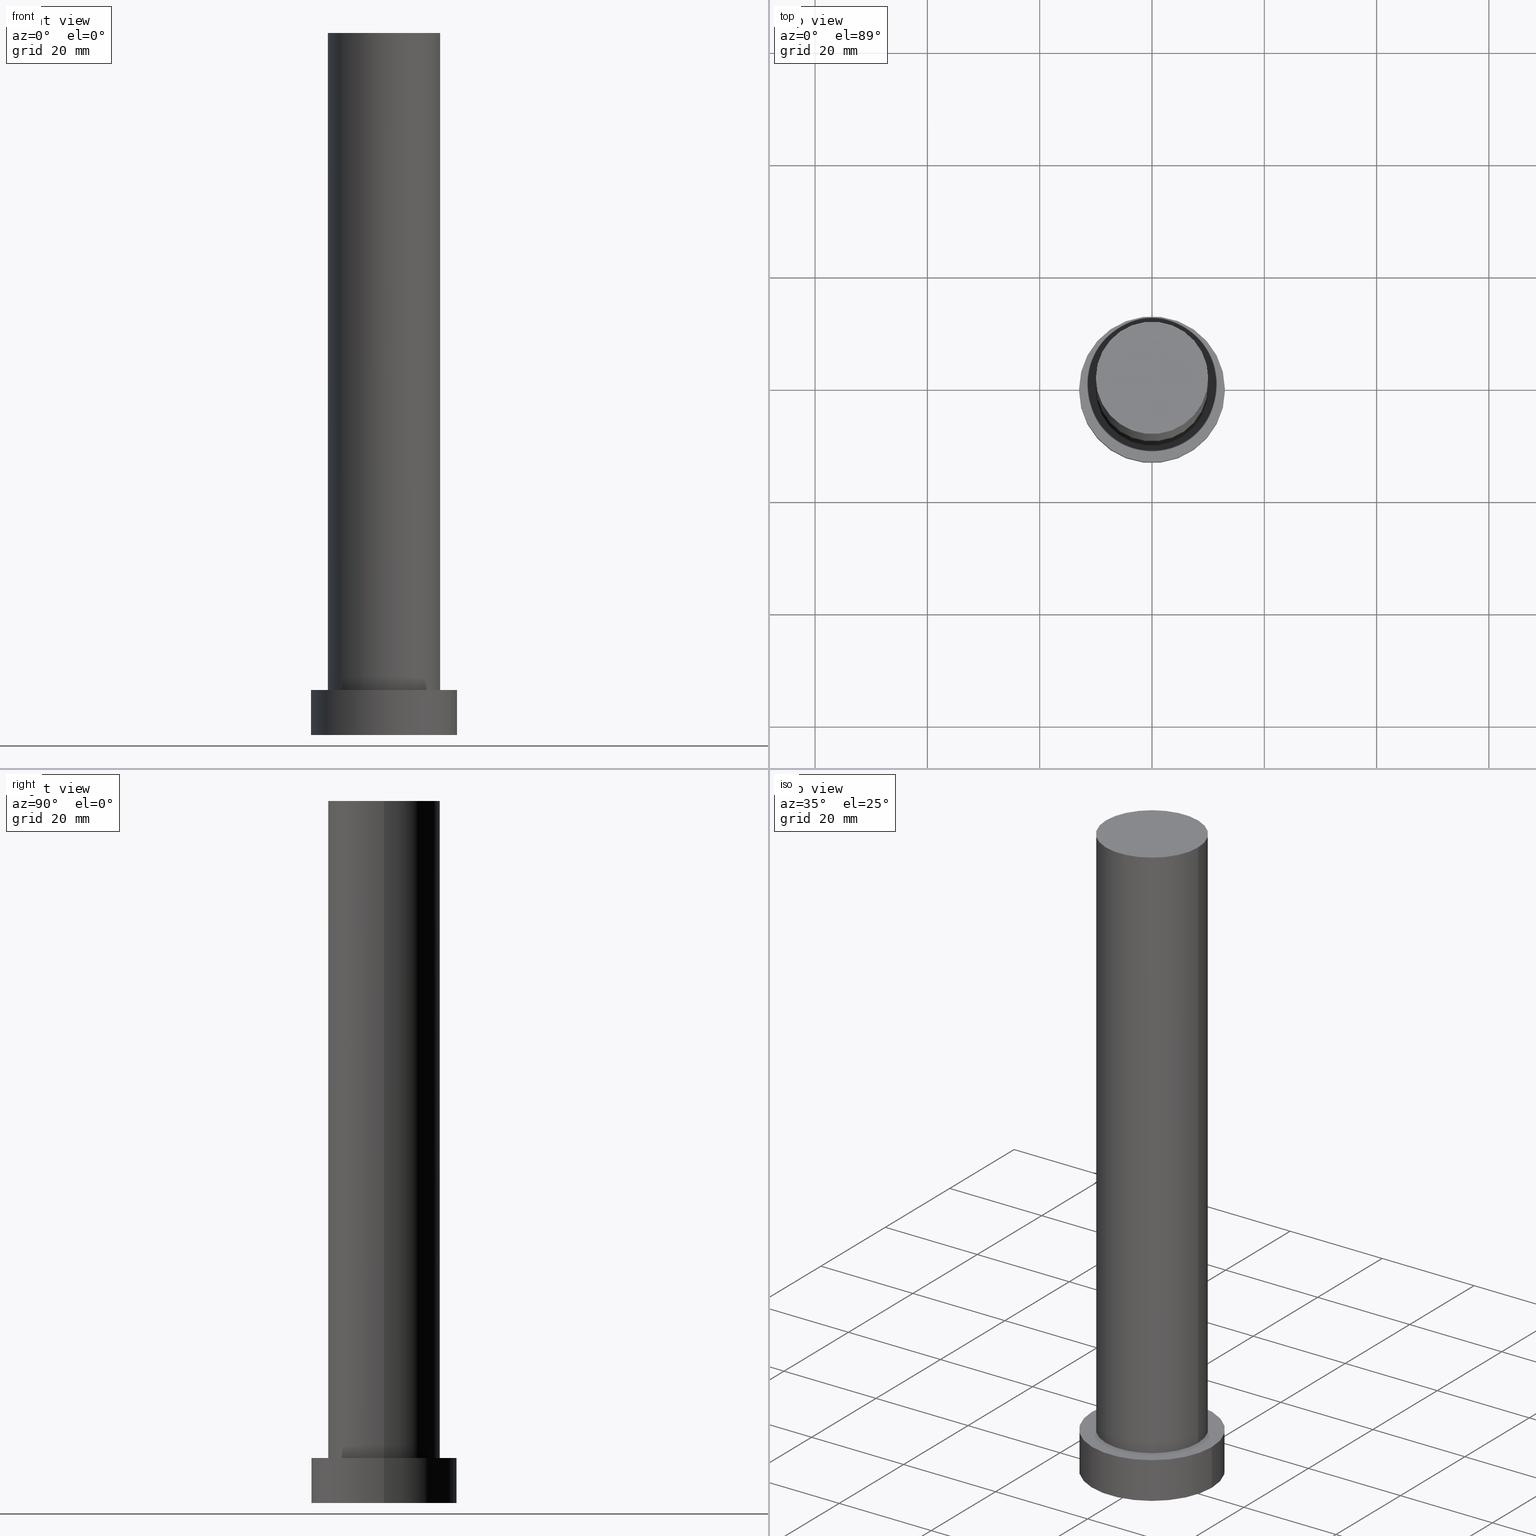
[diagram: canonical four-view strip — front | top / right | iso, engineering-drawing reading convention]
A machine part, canonical four-view strip (front | top / right | iso — engineering-drawing reading convention). The complete STEP part file that produces these views, byte-faithful:
ISO-10303-21;
HEADER;
FILE_DESCRIPTION (( 'STEP AP203' ),
    '1' );
FILE_NAME ('196e.STEP',
    '2023-02-12T10:33:22',
    ( '' ),
    ( '' ),
    'SwSTEP 2.0',
    'SolidWorks 2019',
    '' );
FILE_SCHEMA (( 'CONFIG_CONTROL_DESIGN' ));
ENDSEC;

DATA;
#1 = CALENDAR_DATE ( 2023, 12, 2 ) ;
#2 = EDGE_LOOP ( 'NONE', ( #15, #207, #255, #253 ) ) ;
#3 = PERSON_AND_ORGANIZATION ( #166, #107 ) ;
#4 = CALENDAR_DATE ( 2023, 12, 2 ) ;
#5 = PERSON_AND_ORGANIZATION_ROLE ( 'creator' ) ;
#6 = EDGE_CURVE ( 'NONE', #169, #216, #144, .T. ) ;
#7 = CARTESIAN_POINT ( 'NONE',  ( 10.00000000000000000, 1.224646799147353256E-15, 8.000000000000000000 ) ) ;
#8 = AXIS2_PLACEMENT_3D ( 'NONE', #252, #153, #132 ) ;
#9 = CC_DESIGN_SECURITY_CLASSIFICATION ( #40, ( #158 ) ) ;
#10 = CARTESIAN_POINT ( 'NONE',  ( -10.00000000000000000, 0.000000000000000000, 125.0000000000000000 ) ) ;
#11 = SECURITY_CLASSIFICATION_LEVEL ( 'unclassified' ) ;
#12 = ADVANCED_FACE ( 'NONE', ( #186 ), #232, .T. ) ;
#13 = CARTESIAN_POINT ( 'NONE',  ( 0.000000000000000000, 0.000000000000000000, 125.0000000000000000 ) ) ;
#14 = DIRECTION ( 'NONE',  ( -0.000000000000000000, -0.000000000000000000, -1.000000000000000000 ) ) ;
#15 = ORIENTED_EDGE ( 'NONE', *, *, #23, .F. ) ;
#16 = CARTESIAN_POINT ( 'NONE',  ( 0.000000000000000000, 0.000000000000000000, 125.0000000000000000 ) ) ;
#17 = VECTOR ( 'NONE', #239, 1000.000000000000000 ) ;
#18 = CYLINDRICAL_SURFACE ( 'NONE', #50, 10.00000000000000000 ) ;
#19 = LOCAL_TIME ( 11, 33, 22.00000000000000000, #173 ) ;
#20 = PERSON_AND_ORGANIZATION ( #166, #107 ) ;
#21 = PERSON_AND_ORGANIZATION ( #166, #107 ) ;
#22 = ORIENTED_EDGE ( 'NONE', *, *, #67, .F. ) ;
#23 = EDGE_CURVE ( 'NONE', #225, #88, #190, .T. ) ;
#24 = PLANE ( 'NONE',  #187 ) ;
#25 = CARTESIAN_POINT ( 'NONE',  ( 0.000000000000000000, 0.000000000000000000, 8.000000000000000000 ) ) ;
#26 = CYLINDRICAL_SURFACE ( 'NONE', #223, 13.00000000000000178 ) ;
#27 = CLOSED_SHELL ( 'NONE', ( #53, #101, #49, #77, #248, #227, #12 ) ) ;
#28 = APPROVAL_PERSON_ORGANIZATION ( #117, #128, #93 ) ;
#29 = APPROVAL ( #113, 'NEUR�EN�' ) ;
#30 = ORIENTED_EDGE ( 'NONE', *, *, #36, .T. ) ;
#31 = CARTESIAN_POINT ( 'NONE',  ( -10.00000000000000000, 0.000000000000000000, 125.0000000000000000 ) ) ;
#32 = ORIENTED_EDGE ( 'NONE', *, *, #62, .F. ) ;
#33 = DESIGN_CONTEXT ( 'detailed design', #180, 'design' ) ;
#34 = APPROVAL_ROLE ( '' ) ;
#35 = CIRCLE ( 'NONE', #152, 10.00000000000000000 ) ;
#36 = EDGE_CURVE ( 'NONE', #126, #83, #247, .T. ) ;
#37 = ORIENTED_EDGE ( 'NONE', *, *, #116, .F. ) ;
#38 = DIRECTION ( 'NONE',  ( 1.000000000000000000, 0.000000000000000000, 0.000000000000000000 ) ) ;
#39 = ORIENTED_EDGE ( 'NONE', *, *, #36, .F. ) ;
#40 = SECURITY_CLASSIFICATION ( '', '', #11 ) ;
#41 = CARTESIAN_POINT ( 'NONE',  ( 0.000000000000000000, 0.000000000000000000, 8.000000000000000000 ) ) ;
#42 = DIRECTION ( 'NONE',  ( 1.000000000000000000, 0.000000000000000000, 0.000000000000000000 ) ) ;
#43 = DIRECTION ( 'NONE',  ( -0.000000000000000000, -0.000000000000000000, -1.000000000000000000 ) ) ;
#44 = PERSON_AND_ORGANIZATION_ROLE ( 'design_supplier' ) ;
#45 = CARTESIAN_POINT ( 'NONE',  ( 0.000000000000000000, 0.000000000000000000, 8.000000000000000000 ) ) ;
#46 = LINE ( 'NONE', #31, #129 ) ;
#47 = AXIS2_PLACEMENT_3D ( 'NONE', #233, #73, #60 ) ;
#48 = LINE ( 'NONE', #157, #17 ) ;
#49 = ADVANCED_FACE ( 'NONE', ( #214 ), #130, .T. ) ;
#50 = AXIS2_PLACEMENT_3D ( 'NONE', #16, #43, #115 ) ;
#51 = CC_DESIGN_APPROVAL ( #237, ( #40 ) ) ;
#52 = ORIENTED_EDGE ( 'NONE', *, *, #116, .T. ) ;
#53 = ADVANCED_FACE ( 'NONE', ( #191 ), #18, .T. ) ;
#54 = AXIS2_PLACEMENT_3D ( 'NONE', #41, #109, #111 ) ;
#55 = CIRCLE ( 'NONE', #105, 10.00000000000000000 ) ;
#56 = ORIENTED_EDGE ( 'NONE', *, *, #134, .T. ) ;
#57 = SHAPE_DEFINITION_REPRESENTATION ( #102, #96 ) ;
#58 = CARTESIAN_POINT ( 'NONE',  ( 10.00000000000000000, 1.224646799147353256E-15, 125.0000000000000000 ) ) ;
#59 = APPLICATION_PROTOCOL_DEFINITION ( 'international standard', 'config_control_design', 1994, #80 ) ;
#60 = DIRECTION ( 'NONE',  ( 1.000000000000000000, 0.000000000000000000, 0.000000000000000000 ) ) ;
#61 = ORIENTED_EDGE ( 'NONE', *, *, #211, .T. ) ;
#62 = EDGE_CURVE ( 'NONE', #195, #88, #170, .T. ) ;
#63 = LOCAL_TIME ( 11, 33, 22.00000000000000000, #254 ) ;
#64 = DATE_AND_TIME ( #78, #249 ) ;
#65 = FACE_OUTER_BOUND ( 'NONE', #108, .T. ) ;
#66 = DIRECTION ( 'NONE',  ( 1.000000000000000000, 0.000000000000000000, 0.000000000000000000 ) ) ;
#67 = EDGE_CURVE ( 'NONE', #169, #126, #48, .T. ) ;
#68 = CARTESIAN_POINT ( 'NONE',  ( 0.000000000000000000, 0.000000000000000000, 125.0000000000000000 ) ) ;
#69 = EDGE_LOOP ( 'NONE', ( #32, #246 ) ) ;
#70 = ORIENTED_EDGE ( 'NONE', *, *, #67, .T. ) ;
#71 = CARTESIAN_POINT ( 'NONE',  ( 0.000000000000000000, 0.000000000000000000, 0.000000000000000000 ) ) ;
#72 = CC_DESIGN_PERSON_AND_ORGANIZATION_ASSIGNMENT ( #21, #5, ( #243 ) ) ;
#73 = DIRECTION ( 'NONE',  ( 0.000000000000000000, 0.000000000000000000, 1.000000000000000000 ) ) ;
#74 = VECTOR ( 'NONE', #133, 1000.000000000000000 ) ;
#75 = CARTESIAN_POINT ( 'NONE',  ( -13.00000000000000178, 0.000000000000000000, 8.000000000000000000 ) ) ;
#76 = DIRECTION ( 'NONE',  ( 0.000000000000000000, 0.000000000000000000, 1.000000000000000000 ) ) ;
#77 = ADVANCED_FACE ( 'NONE', ( #222, #200 ), #24, .T. ) ;
#78 = CALENDAR_DATE ( 2023, 12, 2 ) ;
#79 = DIRECTION ( 'NONE',  ( 0.000000000000000000, 0.000000000000000000, 1.000000000000000000 ) ) ;
#80 = APPLICATION_CONTEXT ( 'configuration controlled 3d designs of mechanical parts and assemblies' ) ;
#81 = CIRCLE ( 'NONE', #140, 13.00000000000000178 ) ;
#82 = PERSON_AND_ORGANIZATION_ROLE ( 'design_owner' ) ;
#83 = VERTEX_POINT ( 'NONE', #119 ) ;
#84 = CC_DESIGN_PERSON_AND_ORGANIZATION_ASSIGNMENT ( #226, #192, ( #40 ) ) ;
#85 =( GEOMETRIC_REPRESENTATION_CONTEXT ( 3 ) GLOBAL_UNCERTAINTY_ASSIGNED_CONTEXT ( ( #250 ) ) GLOBAL_UNIT_ASSIGNED_CONTEXT ( ( #234, #251, #231 ) ) REPRESENTATION_CONTEXT ( 'NONE', 'WORKASPACE' ) );
#86 = CARTESIAN_POINT ( 'NONE',  ( 13.00000000000000178, 1.592040838891559293E-15, 8.000000000000000000 ) ) ;
#87 = AXIS2_PLACEMENT_3D ( 'NONE', #235, #90, #42 ) ;
#88 = VERTEX_POINT ( 'NONE', #7 ) ;
#89 = DIRECTION ( 'NONE',  ( -0.000000000000000000, -0.000000000000000000, -1.000000000000000000 ) ) ;
#90 = DIRECTION ( 'NONE',  ( 0.000000000000000000, 0.000000000000000000, 1.000000000000000000 ) ) ;
#91 = APPROVAL_ROLE ( '' ) ;
#92 = EDGE_LOOP ( 'NONE', ( #149, #56 ) ) ;
#93 = APPROVAL_ROLE ( '' ) ;
#94 = DIRECTION ( 'NONE',  ( 1.000000000000000000, 0.000000000000000000, 0.000000000000000000 ) ) ;
#95 = MECHANICAL_CONTEXT ( 'NONE', #80, 'mechanical' ) ;
#96 = ADVANCED_BREP_SHAPE_REPRESENTATION ( '196e', ( #177, #206 ), #85 ) ;
#97 = COORDINATED_UNIVERSAL_TIME_OFFSET ( 1, 0, .AHEAD. ) ;
#98 = DIRECTION ( 'NONE',  ( 0.000000000000000000, 0.000000000000000000, 1.000000000000000000 ) ) ;
#99 = CC_DESIGN_APPROVAL ( #128, ( #243 ) ) ;
#100 = DIRECTION ( 'NONE',  ( 0.000000000000000000, 0.000000000000000000, 1.000000000000000000 ) ) ;
#101 = ADVANCED_FACE ( 'NONE', ( #65 ), #26, .T. ) ;
#102 = PRODUCT_DEFINITION_SHAPE ( 'NONE', 'NONE',  #243 ) ;
#103 = COORDINATED_UNIVERSAL_TIME_OFFSET ( 1, 0, .AHEAD. ) ;
#104 = ORIENTED_EDGE ( 'NONE', *, *, #138, .F. ) ;
#105 = AXIS2_PLACEMENT_3D ( 'NONE', #68, #141, #38 ) ;
#106 = FACE_OUTER_BOUND ( 'NONE', #198, .T. ) ;
#107 = ORGANIZATION ( 'NEUR�EN�', 'NEUR�EN�', '' ) ;
#108 = EDGE_LOOP ( 'NONE', ( #121, #70, #30, #229 ) ) ;
#109 = DIRECTION ( 'NONE',  ( -0.000000000000000000, -0.000000000000000000, -1.000000000000000000 ) ) ;
#110 = FACE_OUTER_BOUND ( 'NONE', #2, .T. ) ;
#111 = DIRECTION ( 'NONE',  ( -1.000000000000000000, 0.000000000000000000, 0.000000000000000000 ) ) ;
#112 = CALENDAR_DATE ( 2023, 12, 2 ) ;
#113 = APPROVAL_STATUS ( 'not_yet_approved' ) ;
#114 = CIRCLE ( 'NONE', #8, 10.00000000000000000 ) ;
#115 = DIRECTION ( 'NONE',  ( -1.000000000000000000, 0.000000000000000000, 0.000000000000000000 ) ) ;
#116 = EDGE_CURVE ( 'NONE', #216, #169, #81, .T. ) ;
#117 = PERSON_AND_ORGANIZATION ( #166, #107 ) ;
#118 = APPROVAL_STATUS ( 'not_yet_approved' ) ;
#119 = CARTESIAN_POINT ( 'NONE',  ( -13.00000000000000178, 0.000000000000000000, 0.000000000000000000 ) ) ;
#120 = AXIS2_PLACEMENT_3D ( 'NONE', #13, #76, #230 ) ;
#121 = ORIENTED_EDGE ( 'NONE', *, *, #6, .F. ) ;
#122 = CALENDAR_DATE ( 2023, 12, 2 ) ;
#123 = CC_DESIGN_DATE_AND_TIME_ASSIGNMENT ( #131, #196, ( #40 ) ) ;
#124 = DIRECTION ( 'NONE',  ( 1.000000000000000000, 0.000000000000000000, 0.000000000000000000 ) ) ;
#125 = APPROVAL_DATE_TIME ( #143, #237 ) ;
#126 = VERTEX_POINT ( 'NONE', #218 ) ;
#127 = DIRECTION ( 'NONE',  ( 1.000000000000000000, 0.000000000000000000, -0.000000000000000000 ) ) ;
#128 = APPROVAL ( #118, 'NEUR�EN�' ) ;
#129 = VECTOR ( 'NONE', #244, 1000.000000000000000 ) ;
#130 = CYLINDRICAL_SURFACE ( 'NONE', #54, 13.00000000000000178 ) ;
#131 = DATE_AND_TIME ( #112, #63 ) ;
#132 = DIRECTION ( 'NONE',  ( 1.000000000000000000, 0.000000000000000000, 0.000000000000000000 ) ) ;
#133 = DIRECTION ( 'NONE',  ( -0.000000000000000000, -0.000000000000000000, -1.000000000000000000 ) ) ;
#134 = EDGE_CURVE ( 'NONE', #225, #183, #35, .T. ) ;
#135 = APPROVAL_DATE_TIME ( #236, #29 ) ;
#136 = PERSON_AND_ORGANIZATION ( #166, #107 ) ;
#137 = DIRECTION ( 'NONE',  ( -0.000000000000000000, -0.000000000000000000, -1.000000000000000000 ) ) ;
#138 = EDGE_CURVE ( 'NONE', #183, #195, #46, .T. ) ;
#139 = PERSON_AND_ORGANIZATION ( #166, #107 ) ;
#140 = AXIS2_PLACEMENT_3D ( 'NONE', #178, #156, #94 ) ;
#141 = DIRECTION ( 'NONE',  ( 0.000000000000000000, 0.000000000000000000, 1.000000000000000000 ) ) ;
#142 = ORIENTED_EDGE ( 'NONE', *, *, #150, .T. ) ;
#143 = DATE_AND_TIME ( #122, #209 ) ;
#144 = CIRCLE ( 'NONE', #87, 13.00000000000000178 ) ;
#145 = AXIS2_PLACEMENT_3D ( 'NONE', #194, #171, #127 ) ;
#146 = ORIENTED_EDGE ( 'NONE', *, *, #150, .F. ) ;
#147 = APPROVAL_STATUS ( 'not_yet_approved' ) ;
#148 = PLANE ( 'NONE',  #145 ) ;
#149 = ORIENTED_EDGE ( 'NONE', *, *, #201, .T. ) ;
#150 = EDGE_CURVE ( 'NONE', #83, #126, #189, .T. ) ;
#151 = ORIENTED_EDGE ( 'NONE', *, *, #6, .T. ) ;
#152 = AXIS2_PLACEMENT_3D ( 'NONE', #160, #240, #66 ) ;
#153 = DIRECTION ( 'NONE',  ( 0.000000000000000000, 0.000000000000000000, 1.000000000000000000 ) ) ;
#154 = ORIENTED_EDGE ( 'NONE', *, *, #219, .T. ) ;
#155 = CYLINDRICAL_SURFACE ( 'NONE', #203, 10.00000000000000000 ) ;
#156 = DIRECTION ( 'NONE',  ( 0.000000000000000000, 0.000000000000000000, 1.000000000000000000 ) ) ;
#157 = CARTESIAN_POINT ( 'NONE',  ( 13.00000000000000178, 1.592040838891559293E-15, 8.000000000000000000 ) ) ;
#158 = PRODUCT_DEFINITION_FORMATION_WITH_SPECIFIED_SOURCE ( 'LIBOVOLN�', '', #199, .NOT_KNOWN. ) ;
#159 = DIRECTION ( 'NONE',  ( 1.000000000000000000, 0.000000000000000000, 0.000000000000000000 ) ) ;
#160 = CARTESIAN_POINT ( 'NONE',  ( 0.000000000000000000, 0.000000000000000000, 125.0000000000000000 ) ) ;
#161 = COORDINATED_UNIVERSAL_TIME_OFFSET ( 1, 0, .AHEAD. ) ;
#162 = CARTESIAN_POINT ( 'NONE',  ( -10.00000000000000000, 0.000000000000000000, 8.000000000000000000 ) ) ;
#163 = LINE ( 'NONE', #215, #197 ) ;
#164 = CC_DESIGN_APPROVAL ( #29, ( #158 ) ) ;
#165 = ORIENTED_EDGE ( 'NONE', *, *, #23, .T. ) ;
#166 = PERSON ( 'NEUR�EN�', 'NEUR�EN�', 'NEUR�EN�', ('NEUR�EN�'), ('NEUR�EN�'), ('NEUR�EN�') ) ;
#167 = DIRECTION ( 'NONE',  ( -1.000000000000000000, 0.000000000000000000, 0.000000000000000000 ) ) ;
#168 = EDGE_LOOP ( 'NONE', ( #52, #151 ) ) ;
#169 = VERTEX_POINT ( 'NONE', #86 ) ;
#170 = CIRCLE ( 'NONE', #184, 10.00000000000000000 ) ;
#171 = DIRECTION ( 'NONE',  ( 0.000000000000000000, 0.000000000000000000, 1.000000000000000000 ) ) ;
#172 = EDGE_LOOP ( 'NONE', ( #212, #165, #154, #104 ) ) ;
#173 = COORDINATED_UNIVERSAL_TIME_OFFSET ( 1, 0, .AHEAD. ) ;
#174 = PERSON_AND_ORGANIZATION_ROLE ( 'creator' ) ;
#175 = CC_DESIGN_PERSON_AND_ORGANIZATION_ASSIGNMENT ( #139, #82, ( #199 ) ) ;
#176 = APPLICATION_PROTOCOL_DEFINITION ( 'international standard', 'config_control_design', 1994, #180 ) ;
#177 = MANIFOLD_SOLID_BREP ( 'P�idat vysunut�m3', #27 ) ;
#178 = CARTESIAN_POINT ( 'NONE',  ( 0.000000000000000000, 0.000000000000000000, 8.000000000000000000 ) ) ;
#179 = DIRECTION ( 'NONE',  ( -1.000000000000000000, 0.000000000000000000, 0.000000000000000000 ) ) ;
#180 = APPLICATION_CONTEXT ( 'configuration controlled 3d designs of mechanical parts and assemblies' ) ;
#181 = APPROVAL_PERSON_ORGANIZATION ( #136, #29, #91 ) ;
#182 = EDGE_LOOP ( 'NONE', ( #22, #37, #61, #142 ) ) ;
#183 = VERTEX_POINT ( 'NONE', #10 ) ;
#184 = AXIS2_PLACEMENT_3D ( 'NONE', #25, #79, #220 ) ;
#185 = CARTESIAN_POINT ( 'NONE',  ( 0.000000000000000000, 0.000000000000000000, 125.0000000000000000 ) ) ;
#186 = FACE_OUTER_BOUND ( 'NONE', #92, .T. ) ;
#187 = AXIS2_PLACEMENT_3D ( 'NONE', #204, #98, #242 ) ;
#188 = PRODUCT_RELATED_PRODUCT_CATEGORY ( 'detail', '', ( #199 ) ) ;
#189 = CIRCLE ( 'NONE', #224, 13.00000000000000178 ) ;
#190 = LINE ( 'NONE', #58, #74 ) ;
#191 = FACE_OUTER_BOUND ( 'NONE', #172, .T. ) ;
#192 = PERSON_AND_ORGANIZATION_ROLE ( 'classification_officer' ) ;
#193 = CC_DESIGN_DATE_AND_TIME_ASSIGNMENT ( #64, #241, ( #243 ) ) ;
#194 = CARTESIAN_POINT ( 'NONE',  ( 0.000000000000000000, 0.000000000000000000, 0.000000000000000000 ) ) ;
#195 = VERTEX_POINT ( 'NONE', #162 ) ;
#196 = DATE_TIME_ROLE ( 'classification_date' ) ;
#197 = VECTOR ( 'NONE', #89, 1000.000000000000000 ) ;
#198 = EDGE_LOOP ( 'NONE', ( #146, #39 ) ) ;
#199 = PRODUCT ( '196e', '196e', '', ( #95 ) ) ;
#200 = FACE_OUTER_BOUND ( 'NONE', #168, .T. ) ;
#201 = EDGE_CURVE ( 'NONE', #183, #225, #55, .T. ) ;
#202 = APPROVAL_DATE_TIME ( #205, #128 ) ;
#203 = AXIS2_PLACEMENT_3D ( 'NONE', #185, #14, #167 ) ;
#204 = CARTESIAN_POINT ( 'NONE',  ( 0.000000000000000000, 0.000000000000000000, 8.000000000000000000 ) ) ;
#205 = DATE_AND_TIME ( #4, #213 ) ;
#206 = AXIS2_PLACEMENT_3D ( 'NONE', #71, #228, #159 ) ;
#207 = ORIENTED_EDGE ( 'NONE', *, *, #201, .F. ) ;
#208 = CC_DESIGN_PERSON_AND_ORGANIZATION_ASSIGNMENT ( #3, #44, ( #158 ) ) ;
#209 = LOCAL_TIME ( 11, 33, 22.00000000000000000, #103 ) ;
#210 = CARTESIAN_POINT ( 'NONE',  ( 10.00000000000000000, 1.224646799147353256E-15, 125.0000000000000000 ) ) ;
#211 = EDGE_CURVE ( 'NONE', #216, #83, #163, .T. ) ;
#212 = ORIENTED_EDGE ( 'NONE', *, *, #134, .F. ) ;
#213 = LOCAL_TIME ( 11, 33, 22.00000000000000000, #97 ) ;
#214 = FACE_OUTER_BOUND ( 'NONE', #182, .T. ) ;
#215 = CARTESIAN_POINT ( 'NONE',  ( -13.00000000000000178, 0.000000000000000000, 8.000000000000000000 ) ) ;
#216 = VERTEX_POINT ( 'NONE', #75 ) ;
#217 = PERSON_AND_ORGANIZATION ( #166, #107 ) ;
#218 = CARTESIAN_POINT ( 'NONE',  ( 13.00000000000000178, 1.592040838891559293E-15, 0.000000000000000000 ) ) ;
#219 = EDGE_CURVE ( 'NONE', #88, #195, #114, .T. ) ;
#220 = DIRECTION ( 'NONE',  ( 1.000000000000000000, 0.000000000000000000, 0.000000000000000000 ) ) ;
#221 = CC_DESIGN_PERSON_AND_ORGANIZATION_ASSIGNMENT ( #217, #174, ( #158 ) ) ;
#222 = FACE_BOUND ( 'NONE', #69, .T. ) ;
#223 = AXIS2_PLACEMENT_3D ( 'NONE', #45, #137, #179 ) ;
#224 = AXIS2_PLACEMENT_3D ( 'NONE', #245, #100, #124 ) ;
#225 = VERTEX_POINT ( 'NONE', #210 ) ;
#226 = PERSON_AND_ORGANIZATION ( #166, #107 ) ;
#227 = ADVANCED_FACE ( 'NONE', ( #110 ), #155, .T. ) ;
#228 = DIRECTION ( 'NONE',  ( 0.000000000000000000, 0.000000000000000000, 1.000000000000000000 ) ) ;
#229 = ORIENTED_EDGE ( 'NONE', *, *, #211, .F. ) ;
#230 = DIRECTION ( 'NONE',  ( 1.000000000000000000, 0.000000000000000000, -0.000000000000000000 ) ) ;
#231 =( NAMED_UNIT ( * ) SI_UNIT ( $, .STERADIAN. ) SOLID_ANGLE_UNIT ( ) );
#232 = PLANE ( 'NONE',  #120 ) ;
#233 = CARTESIAN_POINT ( 'NONE',  ( 0.000000000000000000, 0.000000000000000000, 0.000000000000000000 ) ) ;
#234 =( LENGTH_UNIT ( ) NAMED_UNIT ( * ) SI_UNIT ( .MILLI., .METRE. ) );
#235 = CARTESIAN_POINT ( 'NONE',  ( 0.000000000000000000, 0.000000000000000000, 8.000000000000000000 ) ) ;
#236 = DATE_AND_TIME ( #1, #19 ) ;
#237 = APPROVAL ( #147, 'NEUR�EN�' ) ;
#238 = APPROVAL_PERSON_ORGANIZATION ( #20, #237, #34 ) ;
#239 = DIRECTION ( 'NONE',  ( -0.000000000000000000, -0.000000000000000000, -1.000000000000000000 ) ) ;
#240 = DIRECTION ( 'NONE',  ( 0.000000000000000000, 0.000000000000000000, 1.000000000000000000 ) ) ;
#241 = DATE_TIME_ROLE ( 'creation_date' ) ;
#242 = DIRECTION ( 'NONE',  ( 1.000000000000000000, 0.000000000000000000, -0.000000000000000000 ) ) ;
#243 = PRODUCT_DEFINITION ( 'NEZN�M�', '', #158, #33 ) ;
#244 = DIRECTION ( 'NONE',  ( -0.000000000000000000, -0.000000000000000000, -1.000000000000000000 ) ) ;
#245 = CARTESIAN_POINT ( 'NONE',  ( 0.000000000000000000, 0.000000000000000000, 0.000000000000000000 ) ) ;
#246 = ORIENTED_EDGE ( 'NONE', *, *, #219, .F. ) ;
#247 = CIRCLE ( 'NONE', #47, 13.00000000000000178 ) ;
#248 = ADVANCED_FACE ( 'NONE', ( #106 ), #148, .F. ) ;
#249 = LOCAL_TIME ( 11, 33, 22.00000000000000000, #161 ) ;
#250 = UNCERTAINTY_MEASURE_WITH_UNIT (LENGTH_MEASURE( 1.000000000000000082E-05 ), #234, 'distance_accuracy_value', 'NONE');
#251 =( NAMED_UNIT ( * ) PLANE_ANGLE_UNIT ( ) SI_UNIT ( $, .RADIAN. ) );
#252 = CARTESIAN_POINT ( 'NONE',  ( 0.000000000000000000, 0.000000000000000000, 8.000000000000000000 ) ) ;
#253 = ORIENTED_EDGE ( 'NONE', *, *, #62, .T. ) ;
#254 = COORDINATED_UNIVERSAL_TIME_OFFSET ( 1, 0, .AHEAD. ) ;
#255 = ORIENTED_EDGE ( 'NONE', *, *, #138, .T. ) ;
ENDSEC;
END-ISO-10303-21;
